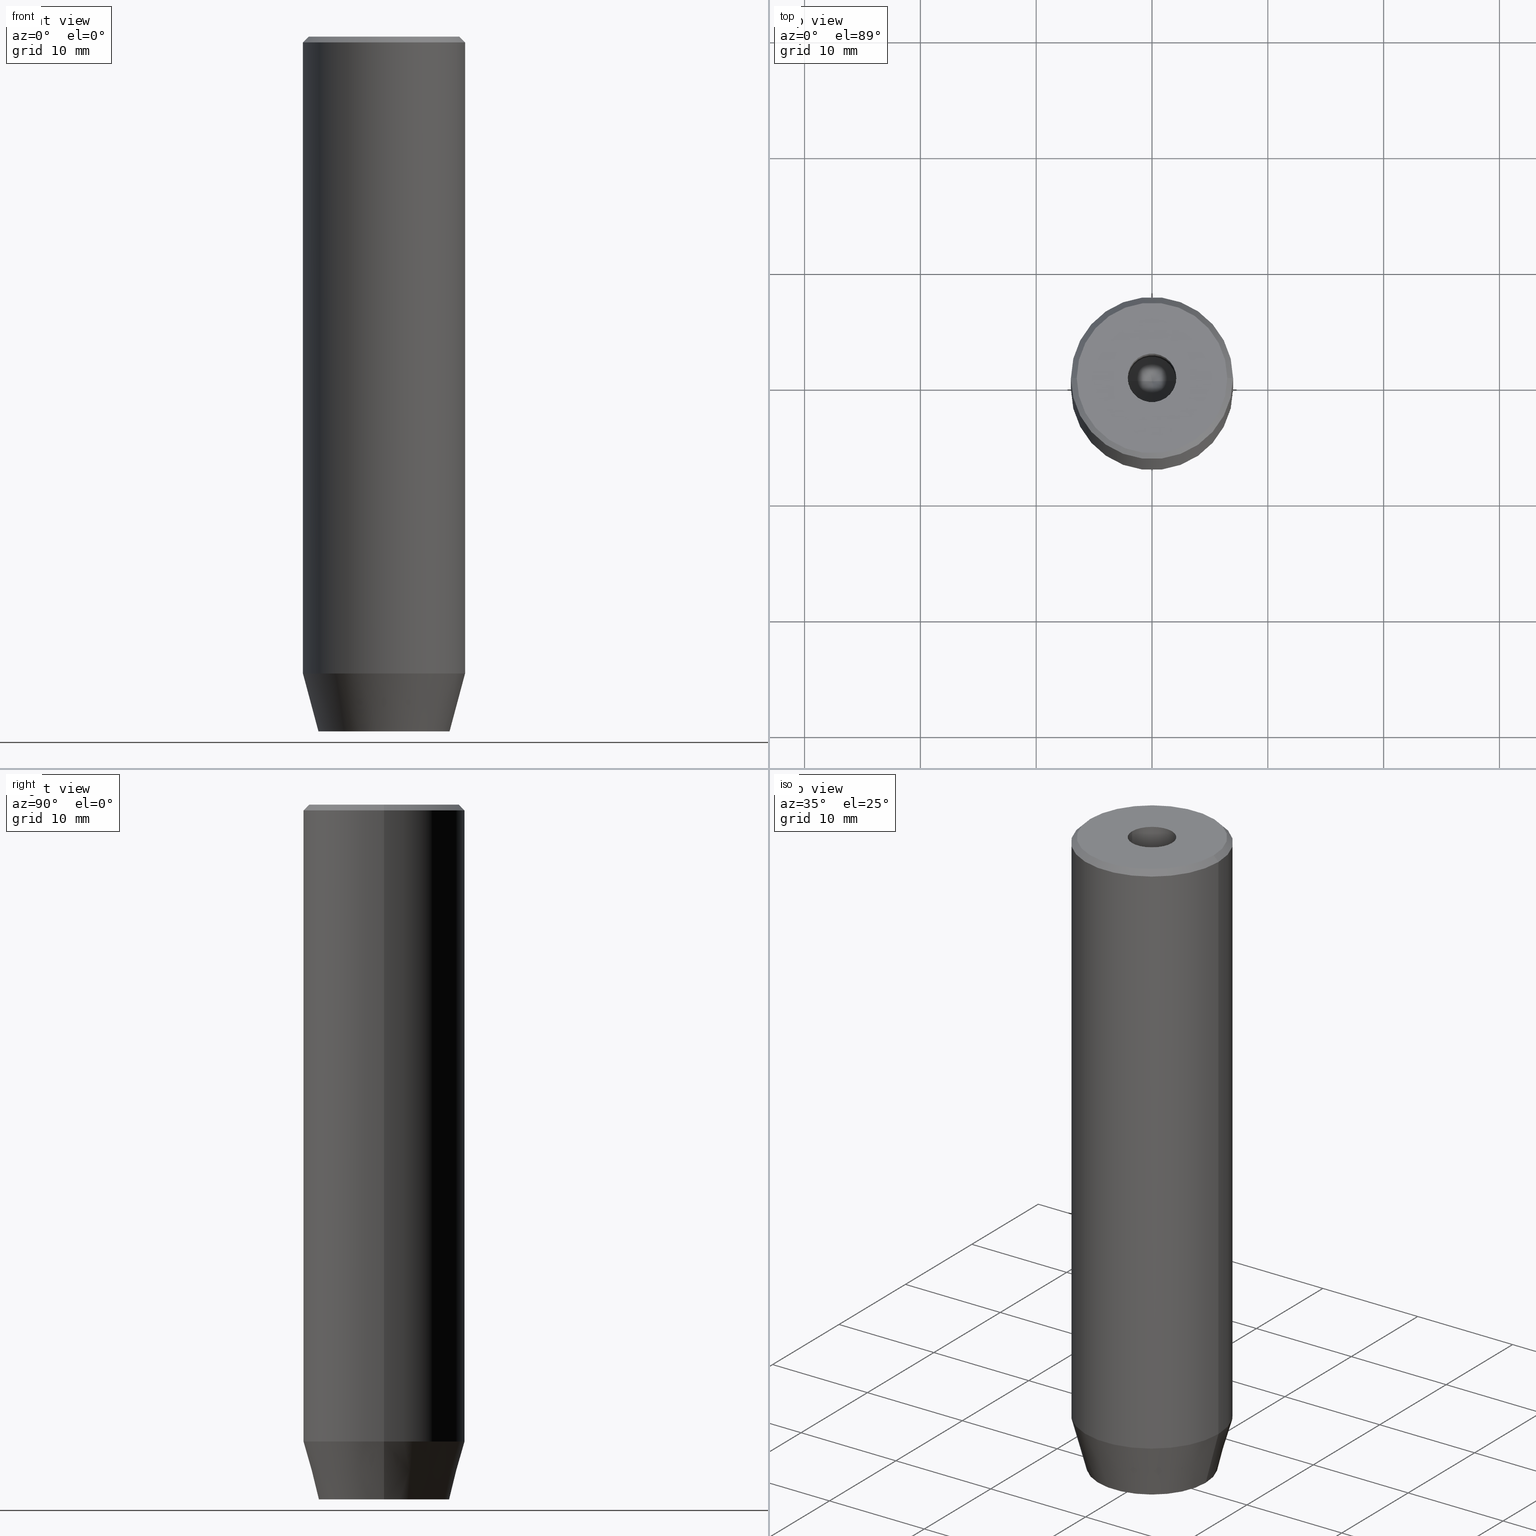
[diagram: canonical four-view strip — front | top / right | iso, engineering-drawing reading convention]
A machine part, canonical four-view strip (front | top / right | iso — engineering-drawing reading convention). The complete STEP part file that produces these views, byte-faithful:
ISO-10303-21;
HEADER;
FILE_DESCRIPTION (( 'STEP AP203' ),
    '1' );
FILE_NAME ('b612.STEP',
    '2024-01-02T21:54:17',
    ( '' ),
    ( '' ),
    'SwSTEP 2.0',
    'SolidWorks 2019',
    '' );
FILE_SCHEMA (( 'CONFIG_CONTROL_DESIGN' ));
ENDSEC;

DATA;
#1 = ORIENTED_EDGE ( 'NONE', *, *, #364, .F. ) ;
#2 = EDGE_CURVE ( 'NONE', #94, #56, #45, .T. ) ;
#3 = ORIENTED_EDGE ( 'NONE', *, *, #448, .F. ) ;
#4 = PRODUCT_RELATED_PRODUCT_CATEGORY ( 'detail', '', ( #91 ) ) ;
#5 = CALENDAR_DATE ( 2024, 2, 1 ) ;
#6 = EDGE_LOOP ( 'NONE', ( #409, #584, #286, #446 ) ) ;
#7 = DIRECTION ( 'NONE',  ( -0.000000000000000000, -0.000000000000000000, -1.000000000000000000 ) ) ;
#8 =( GEOMETRIC_REPRESENTATION_CONTEXT ( 3 ) GLOBAL_UNCERTAINTY_ASSIGNED_CONTEXT ( ( #567 ) ) GLOBAL_UNIT_ASSIGNED_CONTEXT ( ( #582, #178, #495 ) ) REPRESENTATION_CONTEXT ( 'NONE', 'WORKASPACE' ) );
#9 = EDGE_LOOP ( 'NONE', ( #302, #452, #139, #46 ) ) ;
#10 = LINE ( 'NONE', #464, #111 ) ;
#11 = PERSON_AND_ORGANIZATION ( #260, #223 ) ;
#12 = VERTEX_POINT ( 'NONE', #552 ) ;
#13 = EDGE_CURVE ( 'NONE', #56, #94, #377, .T. ) ;
#14 = LINE ( 'NONE', #330, #246 ) ;
#15 = DIRECTION ( 'NONE',  ( 1.000000000000000000, 0.000000000000000000, 0.000000000000000000 ) ) ;
#16 = CARTESIAN_POINT ( 'NONE',  ( -1.250000000000000444, 2.165063509461097269, -60.00000000000000000 ) ) ;
#17 = CALENDAR_DATE ( 2024, 2, 1 ) ;
#18 = ORIENTED_EDGE ( 'NONE', *, *, #462, .F. ) ;
#19 = LINE ( 'NONE', #371, #494 ) ;
#20 = ADVANCED_BREP_SHAPE_REPRESENTATION ( 'b612', ( #49, #239 ), #8 ) ;
#21 = EDGE_CURVE ( 'NONE', #440, #117, #335, .T. ) ;
#22 = DATE_TIME_ROLE ( 'classification_date' ) ;
#23 = CARTESIAN_POINT ( 'NONE',  ( 2.099999999999996980, 0.000000000000000000, -15.00000000000000000 ) ) ;
#24 = DIRECTION ( 'NONE',  ( -0.000000000000000000, -0.000000000000000000, -1.000000000000000000 ) ) ;
#25 = PERSON_AND_ORGANIZATION ( #260, #223 ) ;
#26 = FACE_OUTER_BOUND ( 'NONE', #186, .T. ) ;
#27 = DIRECTION ( 'NONE',  ( -0.000000000000000000, -0.000000000000000000, 1.000000000000000000 ) ) ;
#28 = CARTESIAN_POINT ( 'NONE',  ( 2.099999999999996980, 0.000000000000000000, -15.00000000000000000 ) ) ;
#29 = APPROVAL_PERSON_ORGANIZATION ( #25, #303, #163 ) ;
#30 = CARTESIAN_POINT ( 'NONE',  ( 1.250000000000000222, 2.165063509461096825, -57.20000000000000284 ) ) ;
#31 = CARTESIAN_POINT ( 'NONE',  ( 0.000000000000000000, 0.000000000000000000, -15.00000000000000000 ) ) ;
#32 = FACE_OUTER_BOUND ( 'NONE', #412, .T. ) ;
#33 = ORIENTED_EDGE ( 'NONE', *, *, #2, .F. ) ;
#34 = EDGE_CURVE ( 'NONE', #224, #252, #197, .T. ) ;
#35 = CARTESIAN_POINT ( 'NONE',  ( 2.099999999999997868, 0.000000000000000000, 0.000000000000000000 ) ) ;
#36 = DIRECTION ( 'NONE',  ( -1.000000000000000000, 0.000000000000000000, 0.000000000000000000 ) ) ;
#37 = VERTEX_POINT ( 'NONE', #556 ) ;
#38 = AXIS2_PLACEMENT_3D ( 'NONE', #395, #474, #210 ) ;
#39 = DIRECTION ( 'NONE',  ( 1.000000000000000000, 0.000000000000000000, 0.000000000000000000 ) ) ;
#40 = CARTESIAN_POINT ( 'NONE',  ( 0.000000000000000000, 0.000000000000000000, 0.000000000000000000 ) ) ;
#41 = CONICAL_SURFACE ( 'NONE', #459, 2.099999999999996980, 1.029744258676652535 ) ;
#42 = EDGE_CURVE ( 'NONE', #440, #12, #72, .T. ) ;
#43 = ORIENTED_EDGE ( 'NONE', *, *, #297, .T. ) ;
#44 = VERTEX_POINT ( 'NONE', #157 ) ;
#45 = CIRCLE ( 'NONE', #467, 7.000000000000000000 ) ;
#46 = ORIENTED_EDGE ( 'NONE', *, *, #74, .F. ) ;
#47 = ADVANCED_FACE ( 'NONE', ( #465 ), #61, .F. ) ;
#48 = DIRECTION ( 'NONE',  ( 1.000000000000000000, 0.000000000000000000, 0.000000000000000000 ) ) ;
#49 = MANIFOLD_SOLID_BREP ( 'Vrt�k z�vitn�ku pro M5 z�vit1', #456 ) ;
#50 = VERTEX_POINT ( 'NONE', #69 ) ;
#51 = ORIENTED_EDGE ( 'NONE', *, *, #318, .F. ) ;
#52 = VECTOR ( 'NONE', #283, 1000.000000000000000 ) ;
#53 = ORIENTED_EDGE ( 'NONE', *, *, #433, .F. ) ;
#54 = LINE ( 'NONE', #110, #387 ) ;
#55 = EDGE_CURVE ( 'NONE', #191, #88, #391, .T. ) ;
#56 = VERTEX_POINT ( 'NONE', #438 ) ;
#57 = PLANE ( 'NONE',  #257 ) ;
#58 = CARTESIAN_POINT ( 'NONE',  ( 2.500000000000000000, 0.000000000000000000, -57.20000000000000284 ) ) ;
#59 = FACE_OUTER_BOUND ( 'NONE', #6, .T. ) ;
#60 = AXIS2_PLACEMENT_3D ( 'NONE', #113, #470, #374 ) ;
#61 = PLANE ( 'NONE',  #123 ) ;
#62 = DIRECTION ( 'NONE',  ( -1.000000000000000000, 0.000000000000000000, 0.000000000000000000 ) ) ;
#63 = ADVANCED_FACE ( 'NONE', ( #216 ), #313, .T. ) ;
#64 = AXIS2_PLACEMENT_3D ( 'NONE', #184, #274, #488 ) ;
#65 = ORIENTED_EDGE ( 'NONE', *, *, #453, .F. ) ;
#66 = DIRECTION ( 'NONE',  ( 1.000000000000000000, 0.000000000000000000, 0.000000000000000000 ) ) ;
#67 = LINE ( 'NONE', #165, #230 ) ;
#68 = CARTESIAN_POINT ( 'NONE',  ( 0.000000000000000000, 0.000000000000000000, -60.00000000000000000 ) ) ;
#69 = CARTESIAN_POINT ( 'NONE',  ( -1.084202172485504434E-16, 2.886751345948129543, -57.20000000000000284 ) ) ;
#70 = AXIS2_PLACEMENT_3D ( 'NONE', #310, #308, #478 ) ;
#71 = FACE_OUTER_BOUND ( 'NONE', #243, .T. ) ;
#72 = CIRCLE ( 'NONE', #586, 6.499999999999999112 ) ;
#73 = ORIENTED_EDGE ( 'NONE', *, *, #453, .T. ) ;
#74 = EDGE_CURVE ( 'NONE', #88, #37, #566, .T. ) ;
#75 = LINE ( 'NONE', #528, #442 ) ;
#76 = DESIGN_CONTEXT ( 'detailed design', #208, 'design' ) ;
#77 = CARTESIAN_POINT ( 'NONE',  ( 0.000000000000000000, 0.000000000000000000, 0.000000000000000000 ) ) ;
#78 = ORIENTED_EDGE ( 'NONE', *, *, #401, .F. ) ;
#79 = DIRECTION ( 'NONE',  ( 1.000000000000000000, 0.000000000000000000, 0.000000000000000000 ) ) ;
#80 = DIRECTION ( 'NONE',  ( 1.000000000000000000, 0.000000000000000000, 0.000000000000000000 ) ) ;
#81 = EDGE_LOOP ( 'NONE', ( #272, #307, #65, #428 ) ) ;
#82 = CARTESIAN_POINT ( 'NONE',  ( 0.000000000000000000, -2.886751345948128211, -57.20000000000000284 ) ) ;
#83 = CONICAL_SURFACE ( 'NONE', #513, 7.000000000000000000, 0.2617993877991499074 ) ;
#84 = ADVANCED_FACE ( 'NONE', ( #430, #170 ), #269, .T. ) ;
#85 = FACE_OUTER_BOUND ( 'NONE', #96, .T. ) ;
#86 = ORIENTED_EDGE ( 'NONE', *, *, #152, .T. ) ;
#87 = CIRCLE ( 'NONE', #361, 2.099999999999996980 ) ;
#88 = VERTEX_POINT ( 'NONE', #28 ) ;
#89 = ADVANCED_FACE ( 'NONE', ( #26 ), #413, .F. ) ;
#90 = EDGE_LOOP ( 'NONE', ( #226, #546 ) ) ;
#91 = PRODUCT ( 'b612', 'b612', '', ( #181 ) ) ;
#92 = ORIENTED_EDGE ( 'NONE', *, *, #13, .T. ) ;
#93 = CC_DESIGN_APPROVAL ( #303, ( #298 ) ) ;
#94 = VERTEX_POINT ( 'NONE', #398 ) ;
#95 = APPROVAL_ROLE ( '' ) ;
#96 = EDGE_LOOP ( 'NONE', ( #51, #449, #503, #587 ) ) ;
#97 = CARTESIAN_POINT ( 'NONE',  ( -2.099999999999996980, 2.571758278209438013E-16, -15.00000000000000000 ) ) ;
#98 = EDGE_CURVE ( 'NONE', #497, #542, #255, .T. ) ;
#99 = VECTOR ( 'NONE', #176, 1000.000000000000000 ) ;
#100 = VECTOR ( 'NONE', #198, 1000.000000000000000 ) ;
#101 = APPROVAL_ROLE ( '' ) ;
#102 = ORIENTED_EDGE ( 'NONE', *, *, #401, .T. ) ;
#103 = DIRECTION ( 'NONE',  ( -0.000000000000000000, -0.000000000000000000, 1.000000000000000000 ) ) ;
#104 = LOCAL_TIME ( 22, 54, 17.00000000000000000, #565 ) ;
#105 = PERSON_AND_ORGANIZATION ( #260, #223 ) ;
#106 = DIRECTION ( 'NONE',  ( 1.000000000000000000, 0.000000000000000000, 0.000000000000000000 ) ) ;
#107 = LINE ( 'NONE', #291, #52 ) ;
#108 = EDGE_CURVE ( 'NONE', #367, #88, #196, .T. ) ;
#109 = DIRECTION ( 'NONE',  ( -0.000000000000000000, -0.000000000000000000, 1.000000000000000000 ) ) ;
#110 = CARTESIAN_POINT ( 'NONE',  ( -2.500000000000000444, -1.443375672974064328, -57.20000000000000284 ) ) ;
#111 = VECTOR ( 'NONE', #379, 1000.000000000000114 ) ;
#112 = DIRECTION ( 'NONE',  ( 0.8660254037844387076, -0.4999999999999998890, 0.000000000000000000 ) ) ;
#113 = CARTESIAN_POINT ( 'NONE',  ( 2.500000000000000000, 0.000000000000000000, -57.20000000000000284 ) ) ;
#114 = AXIS2_PLACEMENT_3D ( 'NONE', #77, #27, #437 ) ;
#115 = DIRECTION ( 'NONE',  ( -0.000000000000000000, -0.000000000000000000, -1.000000000000000000 ) ) ;
#116 = DIRECTION ( 'NONE',  ( 1.000000000000000000, 0.000000000000000000, 0.000000000000000000 ) ) ;
#117 = VERTEX_POINT ( 'NONE', #348 ) ;
#118 = PERSON_AND_ORGANIZATION ( #260, #223 ) ;
#119 = DIRECTION ( 'NONE',  ( 0.000000000000000000, 0.000000000000000000, -1.000000000000000000 ) ) ;
#120 = DIRECTION ( 'NONE',  ( 1.000000000000000000, 0.000000000000000000, 0.000000000000000000 ) ) ;
#121 = EDGE_CURVE ( 'NONE', #496, #548, #355, .T. ) ;
#122 = PLANE ( 'NONE',  #70 ) ;
#123 = AXIS2_PLACEMENT_3D ( 'NONE', #340, #511, #112 ) ;
#124 = CYLINDRICAL_SURFACE ( 'NONE', #545, 7.000000000000000000 ) ;
#125 = PERSON_AND_ORGANIZATION ( #260, #223 ) ;
#126 = DIRECTION ( 'NONE',  ( -0.000000000000000000, -0.000000000000000000, 1.000000000000000000 ) ) ;
#127 = CARTESIAN_POINT ( 'NONE',  ( 0.000000000000000000, -2.886751345948128211, -60.00000000000000000 ) ) ;
#128 = CARTESIAN_POINT ( 'NONE',  ( 0.000000000000000000, 0.000000000000000000, -1.990051048614449116E-16 ) ) ;
#129 = ADVANCED_FACE ( 'NONE', ( #353 ), #266, .F. ) ;
#130 = CARTESIAN_POINT ( 'NONE',  ( 0.000000000000000000, 0.000000000000000000, 0.000000000000000000 ) ) ;
#131 = DIRECTION ( 'NONE',  ( 0.8660254037844385966, 0.4999999999999999445, 0.000000000000000000 ) ) ;
#132 = ORIENTED_EDGE ( 'NONE', *, *, #441, .T. ) ;
#133 = CC_DESIGN_PERSON_AND_ORGANIZATION_ASSIGNMENT ( #125, #522, ( #298 ) ) ;
#134 = VECTOR ( 'NONE', #344, 1000.000000000000000 ) ;
#135 = ORIENTED_EDGE ( 'NONE', *, *, #98, .F. ) ;
#136 = CONICAL_SURFACE ( 'NONE', #370, 7.000000000000000000, 0.2617993877991499074 ) ;
#137 = ORIENTED_EDGE ( 'NONE', *, *, #187, .F. ) ;
#138 = EDGE_CURVE ( 'NONE', #37, #179, #140, .T. ) ;
#139 = ORIENTED_EDGE ( 'NONE', *, *, #167, .T. ) ;
#140 = CIRCLE ( 'NONE', #564, 2.099999999999998757 ) ;
#141 = VERTEX_POINT ( 'NONE', #385 ) ;
#142 = VECTOR ( 'NONE', #24, 1000.000000000000000 ) ;
#143 = ORIENTED_EDGE ( 'NONE', *, *, #526, .T. ) ;
#144 = EDGE_CURVE ( 'NONE', #141, #117, #406, .T. ) ;
#145 = DIRECTION ( 'NONE',  ( -0.8660254037844385966, -0.5000000000000001110, 0.000000000000000000 ) ) ;
#146 = EDGE_LOOP ( 'NONE', ( #535, #73, #530, #43, #425, #489 ) ) ;
#147 = DIRECTION ( 'NONE',  ( 1.000000000000000000, 0.000000000000000000, 0.000000000000000000 ) ) ;
#148 = VECTOR ( 'NONE', #349, 1000.000000000000000 ) ;
#149 = DATE_AND_TIME ( #5, #517 ) ;
#150 = ORIENTED_EDGE ( 'NONE', *, *, #254, .T. ) ;
#151 = CARTESIAN_POINT ( 'NONE',  ( -1.084202172485504434E-16, 2.886751345948129543, -57.20000000000000284 ) ) ;
#152 = EDGE_CURVE ( 'NONE', #252, #44, #67, .T. ) ;
#153 = PERSON_AND_ORGANIZATION_ROLE ( 'design_owner' ) ;
#154 = CARTESIAN_POINT ( 'NONE',  ( 0.000000000000000000, 0.000000000000000000, 0.000000000000000000 ) ) ;
#155 = DIRECTION ( 'NONE',  ( 0.000000000000000000, 0.000000000000000000, -1.000000000000000000 ) ) ;
#156 = COORDINATED_UNIVERSAL_TIME_OFFSET ( 1, 0, .AHEAD. ) ;
#157 = CARTESIAN_POINT ( 'NONE',  ( 2.500000000000000000, -1.443375672974064106, -60.00000000000000000 ) ) ;
#158 = PLANE ( 'NONE',  #60 ) ;
#159 = VECTOR ( 'NONE', #305, 1000.000000000000000 ) ;
#160 = CALENDAR_DATE ( 2024, 2, 1 ) ;
#161 = CARTESIAN_POINT ( 'NONE',  ( 0.000000000000000000, 0.000000000000000000, -0.5000000000000117684 ) ) ;
#162 = CARTESIAN_POINT ( 'NONE',  ( -2.500000000000000444, 1.443375672974064772, -57.20000000000000284 ) ) ;
#163 = APPROVAL_ROLE ( '' ) ;
#164 = APPROVAL_PERSON_ORGANIZATION ( #247, #380, #101 ) ;
#165 = CARTESIAN_POINT ( 'NONE',  ( 2.500000000000000000, -1.443375672974064106, -57.20000000000000284 ) ) ;
#166 = CARTESIAN_POINT ( 'NONE',  ( 2.500000000000000000, 1.443375672974064328, -57.20000000000000284 ) ) ;
#167 = EDGE_CURVE ( 'NONE', #179, #37, #576, .T. ) ;
#168 = DIRECTION ( 'NONE',  ( 0.000000000000000000, 1.000000000000000000, 0.000000000000000000 ) ) ;
#169 = CARTESIAN_POINT ( 'NONE',  ( -2.099999999999996980, 2.571758278209438013E-16, -15.00000000000000000 ) ) ;
#170 = FACE_OUTER_BOUND ( 'NONE', #537, .T. ) ;
#171 = AXIS2_PLACEMENT_3D ( 'NONE', #557, #155, #62 ) ;
#172 = DIRECTION ( 'NONE',  ( -0.000000000000000000, -0.000000000000000000, 1.000000000000000000 ) ) ;
#173 = VERTEX_POINT ( 'NONE', #258 ) ;
#174 = CC_DESIGN_DATE_AND_TIME_ASSIGNMENT ( #149, #188, ( #215 ) ) ;
#175 = DIRECTION ( 'NONE',  ( -0.000000000000000000, -0.000000000000000000, 1.000000000000000000 ) ) ;
#176 = DIRECTION ( 'NONE',  ( -0.000000000000000000, -0.000000000000000000, -1.000000000000000000 ) ) ;
#177 = PLANE ( 'NONE',  #235 ) ;
#178 =( NAMED_UNIT ( * ) PLANE_ANGLE_UNIT ( ) SI_UNIT ( $, .RADIAN. ) );
#179 = VERTEX_POINT ( 'NONE', #434 ) ;
#180 = VECTOR ( 'NONE', #469, 1000.000000000000000 ) ;
#181 = MECHANICAL_CONTEXT ( 'NONE', #312, 'mechanical' ) ;
#182 = ORIENTED_EDGE ( 'NONE', *, *, #433, .T. ) ;
#183 = ADVANCED_FACE ( 'NONE', ( #570 ), #122, .F. ) ;
#184 = CARTESIAN_POINT ( 'NONE',  ( 0.000000000000000000, 0.000000000000000000, -0.5000000000000117684 ) ) ;
#185 = ORIENTED_EDGE ( 'NONE', *, *, #441, .F. ) ;
#186 = EDGE_LOOP ( 'NONE', ( #323, #331, #275 ) ) ;
#187 = EDGE_CURVE ( 'NONE', #193, #44, #75, .T. ) ;
#188 = DATE_TIME_ROLE ( 'creation_date' ) ;
#189 = ORIENTED_EDGE ( 'NONE', *, *, #373, .T. ) ;
#190 = DIRECTION ( 'NONE',  ( -0.000000000000000000, -0.000000000000000000, 1.000000000000000000 ) ) ;
#191 = VERTEX_POINT ( 'NONE', #573 ) ;
#192 = DIRECTION ( 'NONE',  ( 0.2588190451025211836, 0.000000000000000000, 0.9659258262890680902 ) ) ;
#193 = VERTEX_POINT ( 'NONE', #222 ) ;
#194 = CARTESIAN_POINT ( 'NONE',  ( -6.499999999999999112, 0.000000000000000000, 0.000000000000000000 ) ) ;
#195 = ADVANCED_FACE ( 'NONE', ( #85 ), #443, .F. ) ;
#196 = CIRCLE ( 'NONE', #423, 2.099999999999996980 ) ;
#197 = LINE ( 'NONE', #58, #397 ) ;
#198 = DIRECTION ( 'NONE',  ( 0.8660254037844385966, 0.5000000000000001110, 0.000000000000000000 ) ) ;
#199 = ORIENTED_EDGE ( 'NONE', *, *, #543, .T. ) ;
#200 = DIRECTION ( 'NONE',  ( 0.000000000000000000, -0.000000000000000000, 1.000000000000000000 ) ) ;
#201 = APPROVAL_STATUS ( 'not_yet_approved' ) ;
#202 = DIRECTION ( 'NONE',  ( 1.000000000000000000, 0.000000000000000000, 0.000000000000000000 ) ) ;
#203 = CARTESIAN_POINT ( 'NONE',  ( -2.500000000000000444, 0.000000000000000000, -60.00000000000000000 ) ) ;
#204 = VECTOR ( 'NONE', #103, 1000.000000000000000 ) ;
#205 = ADVANCED_FACE ( 'NONE', ( #402 ), #177, .F. ) ;
#206 = DIRECTION ( 'NONE',  ( 1.000000000000000000, 0.000000000000000000, 0.000000000000000000 ) ) ;
#207 = CARTESIAN_POINT ( 'NONE',  ( -2.500000000000000444, -1.443375672974064328, -60.00000000000000000 ) ) ;
#208 = APPLICATION_CONTEXT ( 'configuration controlled 3d designs of mechanical parts and assemblies' ) ;
#209 = CONICAL_SURFACE ( 'NONE', #490, 6.499999999999999112, 0.7853981633974378429 ) ;
#210 = DIRECTION ( 'NONE',  ( 1.000000000000000000, 0.000000000000000000, 0.000000000000000000 ) ) ;
#211 = CARTESIAN_POINT ( 'NONE',  ( 6.499999999999999112, 8.266365894244633347E-16, 0.000000000000000000 ) ) ;
#212 = DIRECTION ( 'NONE',  ( -0.000000000000000000, -0.000000000000000000, -1.000000000000000000 ) ) ;
#213 = DIRECTION ( 'NONE',  ( -0.000000000000000000, -0.000000000000000000, 1.000000000000000000 ) ) ;
#214 = ORIENTED_EDGE ( 'NONE', *, *, #498, .T. ) ;
#215 = PRODUCT_DEFINITION ( 'NEZN�M�', '', #417, #76 ) ;
#216 = FACE_OUTER_BOUND ( 'NONE', #146, .T. ) ;
#217 = PRODUCT_DEFINITION_SHAPE ( 'NONE', 'NONE',  #215 ) ;
#218 = AXIS2_PLACEMENT_3D ( 'NONE', #416, #460, #106 ) ;
#219 = LINE ( 'NONE', #431, #585 ) ;
#220 = ORIENTED_EDGE ( 'NONE', *, *, #263, .F. ) ;
#221 = CC_DESIGN_PERSON_AND_ORGANIZATION_ASSIGNMENT ( #118, #468, ( #417 ) ) ;
#222 = CARTESIAN_POINT ( 'NONE',  ( 2.500000000000000000, 1.443375672974064328, -60.00000000000000000 ) ) ;
#223 = ORGANIZATION ( 'NEUR�EN�', 'NEUR�EN�', '' ) ;
#224 = VERTEX_POINT ( 'NONE', #315 ) ;
#225 = FACE_OUTER_BOUND ( 'NONE', #81, .T. ) ;
#226 = ORIENTED_EDGE ( 'NONE', *, *, #138, .F. ) ;
#227 = ADVANCED_FACE ( 'NONE', ( #59 ), #368, .T. ) ;
#228 = APPLICATION_PROTOCOL_DEFINITION ( 'international standard', 'config_control_design', 1994, #312 ) ;
#229 = ORIENTED_EDGE ( 'NONE', *, *, #339, .F. ) ;
#230 = VECTOR ( 'NONE', #212, 1000.000000000000000 ) ;
#231 = ORIENTED_EDGE ( 'NONE', *, *, #393, .F. ) ;
#232 = ORIENTED_EDGE ( 'NONE', *, *, #297, .F. ) ;
#233 = EDGE_CURVE ( 'NONE', #496, #497, #547, .T. ) ;
#234 = EDGE_LOOP ( 'NONE', ( #507, #404, #232, #86 ) ) ;
#235 = AXIS2_PLACEMENT_3D ( 'NONE', #357, #534, #131 ) ;
#236 = APPROVAL ( #499, 'NEUR�EN�' ) ;
#237 = DIRECTION ( 'NONE',  ( -0.000000000000000000, -0.000000000000000000, 1.000000000000000000 ) ) ;
#238 = DIRECTION ( 'NONE',  ( -0.000000000000000000, -0.000000000000000000, -1.000000000000000000 ) ) ;
#239 = AXIS2_PLACEMENT_3D ( 'NONE', #40, #362, #403 ) ;
#240 = AXIS2_PLACEMENT_3D ( 'NONE', #68, #309, #396 ) ;
#241 = ORIENTED_EDGE ( 'NONE', *, *, #21, .T. ) ;
#242 = DIRECTION ( 'NONE',  ( -0.5000000000000001110, 0.8660254037844385966, 0.000000000000000000 ) ) ;
#243 = EDGE_LOOP ( 'NONE', ( #277, #248, #102, #369 ) ) ;
#244 = ADVANCED_FACE ( 'NONE', ( #422 ), #83, .T. ) ;
#245 = LINE ( 'NONE', #194, #316 ) ;
#246 = VECTOR ( 'NONE', #192, 1000.000000000000114 ) ;
#247 = PERSON_AND_ORGANIZATION ( #260, #223 ) ;
#248 = ORIENTED_EDGE ( 'NONE', *, *, #2, .T. ) ;
#249 = FACE_OUTER_BOUND ( 'NONE', #265, .T. ) ;
#250 = CIRCLE ( 'NONE', #580, 5.660254037844384634 ) ;
#251 = DATE_AND_TIME ( #352, #568 ) ;
#252 = VERTEX_POINT ( 'NONE', #341 ) ;
#253 = DIRECTION ( 'NONE',  ( -0.000000000000000000, -0.000000000000000000, 1.000000000000000000 ) ) ;
#254 = EDGE_CURVE ( 'NONE', #173, #382, #512, .T. ) ;
#255 = LINE ( 'NONE', #481, #550 ) ;
#256 = DIRECTION ( 'NONE',  ( -0.8571673007021113344, 1.049727191138617463E-16, 0.5150380749100558209 ) ) ;
#257 = AXIS2_PLACEMENT_3D ( 'NONE', #414, #242, #145 ) ;
#258 = CARTESIAN_POINT ( 'NONE',  ( -2.500000000000000444, 1.443375672974064772, -60.00000000000000000 ) ) ;
#259 = LINE ( 'NONE', #203, #504 ) ;
#260 = PERSON ( 'NEUR�EN�', 'NEUR�EN�', 'NEUR�EN�', ('NEUR�EN�'), ('NEUR�EN�'), ('NEUR�EN�') ) ;
#261 = ORIENTED_EDGE ( 'NONE', *, *, #42, .F. ) ;
#262 = DIRECTION ( 'NONE',  ( 0.000000000000000000, -1.000000000000000000, 0.000000000000000000 ) ) ;
#263 = EDGE_CURVE ( 'NONE', #12, #141, #245, .T. ) ;
#264 = CARTESIAN_POINT ( 'NONE',  ( -1.250000000000000444, 2.165063509461097269, -57.20000000000000284 ) ) ;
#265 = EDGE_LOOP ( 'NONE', ( #544, #281 ) ) ;
#266 = CYLINDRICAL_SURFACE ( 'NONE', #486, 2.099999999999997868 ) ;
#267 = DIRECTION ( 'NONE',  ( 0.000000000000000000, 0.000000000000000000, -1.000000000000000000 ) ) ;
#268 = EDGE_LOOP ( 'NONE', ( #261, #241, #359, #220 ) ) ;
#269 = PLANE ( 'NONE',  #525 ) ;
#270 = AXIS2_PLACEMENT_3D ( 'NONE', #549, #200, #66 ) ;
#271 = DIRECTION ( 'NONE',  ( 0.5000000000000001110, 0.8660254037844385966, -0.000000000000000000 ) ) ;
#272 = ORIENTED_EDGE ( 'NONE', *, *, #415, .T. ) ;
#273 = EDGE_CURVE ( 'NONE', #365, #94, #10, .T. ) ;
#274 = DIRECTION ( 'NONE',  ( 0.000000000000000000, 0.000000000000000000, -1.000000000000000000 ) ) ;
#275 = ORIENTED_EDGE ( 'NONE', *, *, #108, .T. ) ;
#276 = CARTESIAN_POINT ( 'NONE',  ( 1.250000000000000222, 2.165063509461096825, -57.20000000000000284 ) ) ;
#277 = ORIENTED_EDGE ( 'NONE', *, *, #373, .F. ) ;
#278 = EDGE_LOOP ( 'NONE', ( #375, #378, #541, #143 ) ) ;
#279 = CIRCLE ( 'NONE', #531, 6.499999999999999112 ) ;
#280 = CC_DESIGN_PERSON_AND_ORGANIZATION_ASSIGNMENT ( #381, #285, ( #215 ) ) ;
#281 = ORIENTED_EDGE ( 'NONE', *, *, #42, .T. ) ;
#282 = VERTEX_POINT ( 'NONE', #332 ) ;
#283 = DIRECTION ( 'NONE',  ( -0.000000000000000000, -0.000000000000000000, 1.000000000000000000 ) ) ;
#284 = VECTOR ( 'NONE', #256, 1000.000000000000000 ) ;
#285 = PERSON_AND_ORGANIZATION_ROLE ( 'creator' ) ;
#286 = ORIENTED_EDGE ( 'NONE', *, *, #263, .T. ) ;
#287 = FACE_OUTER_BOUND ( 'NONE', #278, .T. ) ;
#288 = CC_DESIGN_APPROVAL ( #380, ( #215 ) ) ;
#289 = EDGE_CURVE ( 'NONE', #44, #548, #19, .T. ) ;
#290 = CARTESIAN_POINT ( 'NONE',  ( 0.000000000000000000, 0.000000000000000000, -55.00000000000000000 ) ) ;
#291 = CARTESIAN_POINT ( 'NONE',  ( -7.000000000000000000, 8.572527594031473190E-16, 0.000000000000000000 ) ) ;
#292 = DIRECTION ( 'NONE',  ( 1.000000000000000000, 0.000000000000000000, 0.000000000000000000 ) ) ;
#293 = LINE ( 'NONE', #383, #134 ) ;
#294 = AXIS2_PLACEMENT_3D ( 'NONE', #31, #126, #206 ) ;
#295 = CARTESIAN_POINT ( 'NONE',  ( 6.499999999999999112, 7.960204194457794491E-16, 0.000000000000000000 ) ) ;
#296 = DIRECTION ( 'NONE',  ( -0.8660254037844387076, -0.5000000000000001110, 0.000000000000000000 ) ) ;
#297 = EDGE_CURVE ( 'NONE', #252, #496, #338, .T. ) ;
#298 = SECURITY_CLASSIFICATION ( '', '', #427 ) ;
#299 = PERSON_AND_ORGANIZATION_ROLE ( 'creator' ) ;
#300 = DIRECTION ( 'NONE',  ( -0.000000000000000000, -0.000000000000000000, 1.000000000000000000 ) ) ;
#301 = CARTESIAN_POINT ( 'NONE',  ( 0.000000000000000000, -2.886751345948128211, -57.20000000000000284 ) ) ;
#302 = ORIENTED_EDGE ( 'NONE', *, *, #108, .F. ) ;
#303 = APPROVAL ( #201, 'NEUR�EN�' ) ;
#304 = SHAPE_DEFINITION_REPRESENTATION ( #217, #20 ) ;
#305 = DIRECTION ( 'NONE',  ( 0.8571673007021113344, 0.000000000000000000, 0.5150380749100558209 ) ) ;
#306 = CARTESIAN_POINT ( 'NONE',  ( -2.500000000000000444, 1.443375672974064772, -57.20000000000000284 ) ) ;
#307 = ORIENTED_EDGE ( 'NONE', *, *, #526, .F. ) ;
#308 = DIRECTION ( 'NONE',  ( -1.000000000000000000, 0.000000000000000000, 0.000000000000000000 ) ) ;
#309 = DIRECTION ( 'NONE',  ( -0.000000000000000000, -0.000000000000000000, 1.000000000000000000 ) ) ;
#310 = CARTESIAN_POINT ( 'NONE',  ( -2.500000000000000444, 0.000000000000000000, -57.20000000000000284 ) ) ;
#311 = FACE_OUTER_BOUND ( 'NONE', #268, .T. ) ;
#312 = APPLICATION_CONTEXT ( 'configuration controlled 3d designs of mechanical parts and assemblies' ) ;
#313 = PLANE ( 'NONE',  #405 ) ;
#314 = CARTESIAN_POINT ( 'NONE',  ( 0.000000000000000000, 0.000000000000000000, -15.00000000000000000 ) ) ;
#315 = CARTESIAN_POINT ( 'NONE',  ( 2.500000000000000000, 1.443375672974064328, -57.20000000000000284 ) ) ;
#316 = VECTOR ( 'NONE', #553, 1000.000000000000000 ) ;
#317 = EDGE_LOOP ( 'NONE', ( #360, #214, #363, #33 ) ) ;
#318 = EDGE_CURVE ( 'NONE', #367, #179, #559, .T. ) ;
#319 = PLANE ( 'NONE',  #555 ) ;
#320 = ORIENTED_EDGE ( 'NONE', *, *, #415, .F. ) ;
#321 = ORIENTED_EDGE ( 'NONE', *, *, #393, .T. ) ;
#322 = CC_DESIGN_PERSON_AND_ORGANIZATION_ASSIGNMENT ( #11, #153, ( #91 ) ) ;
#323 = ORIENTED_EDGE ( 'NONE', *, *, #55, .F. ) ;
#324 = VECTOR ( 'NONE', #115, 1000.000000000000000 ) ;
#325 = CARTESIAN_POINT ( 'NONE',  ( 0.000000000000000000, 0.000000000000000000, 0.000000000000000000 ) ) ;
#326 = ORIENTED_EDGE ( 'NONE', *, *, #289, .F. ) ;
#327 = CIRCLE ( 'NONE', #64, 7.000000000000000000 ) ;
#328 = DATE_AND_TIME ( #17, #539 ) ;
#329 = EDGE_LOOP ( 'NONE', ( #182, #185, #135, #321 ) ) ;
#330 = CARTESIAN_POINT ( 'NONE',  ( 7.000000000000000000, 0.000000000000000000, -55.00000000000000000 ) ) ;
#331 = ORIENTED_EDGE ( 'NONE', *, *, #424, .T. ) ;
#332 = CARTESIAN_POINT ( 'NONE',  ( 5.660254037844384634, 0.000000000000000000, -60.00000000000000000 ) ) ;
#333 = VECTOR ( 'NONE', #7, 1000.000000000000000 ) ;
#334 = ADVANCED_FACE ( 'NONE', ( #508 ), #57, .F. ) ;
#335 = LINE ( 'NONE', #295, #180 ) ;
#336 = CARTESIAN_POINT ( 'NONE',  ( -1.249999999999999556, -2.165063509461096825, -57.20000000000000284 ) ) ;
#337 = ORIENTED_EDGE ( 'NONE', *, *, #144, .T. ) ;
#338 = LINE ( 'NONE', #461, #476 ) ;
#339 = EDGE_CURVE ( 'NONE', #282, #56, #14, .T. ) ;
#340 = CARTESIAN_POINT ( 'NONE',  ( -1.249999999999999556, -2.165063509461096825, -57.20000000000000284 ) ) ;
#341 = CARTESIAN_POINT ( 'NONE',  ( 2.500000000000000000, -1.443375672974064106, -57.20000000000000284 ) ) ;
#342 = AXIS2_PLACEMENT_3D ( 'NONE', #161, #119, #343 ) ;
#343 = DIRECTION ( 'NONE',  ( 1.000000000000000000, 0.000000000000000000, 0.000000000000000000 ) ) ;
#344 = DIRECTION ( 'NONE',  ( -0.000000000000000000, -0.000000000000000000, 1.000000000000000000 ) ) ;
#345 = DIRECTION ( 'NONE',  ( 1.000000000000000000, 0.000000000000000000, 0.000000000000000000 ) ) ;
#346 = DIRECTION ( 'NONE',  ( 1.000000000000000000, 0.000000000000000000, 0.000000000000000000 ) ) ;
#347 = PERSON_AND_ORGANIZATION ( #260, #223 ) ;
#348 = CARTESIAN_POINT ( 'NONE',  ( 7.000000000000000000, 0.000000000000000000, -0.5000000000000117684 ) ) ;
#349 = DIRECTION ( 'NONE',  ( 0.8660254037844385966, -0.5000000000000001110, 0.000000000000000000 ) ) ;
#350 = ADVANCED_FACE ( 'NONE', ( #287 ), #158, .F. ) ;
#351 = VECTOR ( 'NONE', #418, 1000.000000000000114 ) ;
#352 = CALENDAR_DATE ( 2024, 2, 1 ) ;
#353 = FACE_OUTER_BOUND ( 'NONE', #9, .T. ) ;
#354 = DIRECTION ( 'NONE',  ( 1.000000000000000000, 0.000000000000000000, 0.000000000000000000 ) ) ;
#355 = LINE ( 'NONE', #82, #324 ) ;
#356 = LINE ( 'NONE', #166, #142 ) ;
#357 = CARTESIAN_POINT ( 'NONE',  ( 1.249999999999999778, -2.165063509461096380, -57.20000000000000284 ) ) ;
#358 = ADVANCED_FACE ( 'NONE', ( #376, #249 ), #510, .T. ) ;
#359 = ORIENTED_EDGE ( 'NONE', *, *, #144, .F. ) ;
#360 = ORIENTED_EDGE ( 'NONE', *, *, #273, .F. ) ;
#361 = AXIS2_PLACEMENT_3D ( 'NONE', #392, #529, #116 ) ;
#362 = DIRECTION ( 'NONE',  ( 0.000000000000000000, 0.000000000000000000, 1.000000000000000000 ) ) ;
#363 = ORIENTED_EDGE ( 'NONE', *, *, #339, .T. ) ;
#364 = EDGE_CURVE ( 'NONE', #50, #382, #501, .T. ) ;
#365 = VERTEX_POINT ( 'NONE', #420 ) ;
#366 = CC_DESIGN_PERSON_AND_ORGANIZATION_ASSIGNMENT ( #347, #299, ( #417 ) ) ;
#367 = VERTEX_POINT ( 'NONE', #97 ) ;
#368 = CONICAL_SURFACE ( 'NONE', #171, 6.499999999999999112, 0.7853981633974378429 ) ;
#369 = ORIENTED_EDGE ( 'NONE', *, *, #561, .T. ) ;
#370 = AXIS2_PLACEMENT_3D ( 'NONE', #521, #213, #80 ) ;
#371 = CARTESIAN_POINT ( 'NONE',  ( 1.249999999999999778, -2.165063509461096380, -60.00000000000000000 ) ) ;
#372 = ORIENTED_EDGE ( 'NONE', *, *, #233, .F. ) ;
#373 = EDGE_CURVE ( 'NONE', #94, #141, #107, .T. ) ;
#374 = DIRECTION ( 'NONE',  ( -0.000000000000000000, 0.000000000000000000, -1.000000000000000000 ) ) ;
#375 = ORIENTED_EDGE ( 'NONE', *, *, #187, .T. ) ;
#376 = FACE_BOUND ( 'NONE', #90, .T. ) ;
#377 = CIRCLE ( 'NONE', #218, 7.000000000000000000 ) ;
#378 = ORIENTED_EDGE ( 'NONE', *, *, #152, .F. ) ;
#379 = DIRECTION ( 'NONE',  ( -0.2588190451025211836, 3.169619151431770488E-17, 0.9659258262890680902 ) ) ;
#380 = APPROVAL ( #411, 'NEUR�EN�' ) ;
#381 = PERSON_AND_ORGANIZATION ( #260, #223 ) ;
#382 = VERTEX_POINT ( 'NONE', #457 ) ;
#383 = CARTESIAN_POINT ( 'NONE',  ( 7.000000000000000000, 0.000000000000000000, 0.000000000000000000 ) ) ;
#384 = COORDINATED_UNIVERSAL_TIME_OFFSET ( 1, 0, .AHEAD. ) ;
#385 = CARTESIAN_POINT ( 'NONE',  ( -7.000000000000000000, 8.572527594031473190E-16, -0.5000000000000117684 ) ) ;
#386 = LINE ( 'NONE', #169, #284 ) ;
#387 = VECTOR ( 'NONE', #238, 1000.000000000000000 ) ;
#388 = DIRECTION ( 'NONE',  ( -0.000000000000000000, -0.000000000000000000, 1.000000000000000000 ) ) ;
#389 = CYLINDRICAL_SURFACE ( 'NONE', #114, 7.000000000000000000 ) ;
#390 = LOCAL_TIME ( 22, 54, 17.00000000000000000, #384 ) ;
#391 = LINE ( 'NONE', #23, #159 ) ;
#392 = CARTESIAN_POINT ( 'NONE',  ( 0.000000000000000000, 0.000000000000000000, -15.00000000000000000 ) ) ;
#393 = EDGE_CURVE ( 'NONE', #497, #455, #54, .T. ) ;
#394 = DATE_AND_TIME ( #477, #390 ) ;
#395 = CARTESIAN_POINT ( 'NONE',  ( 0.000000000000000000, 0.000000000000000000, -1.990051048614449116E-16 ) ) ;
#396 = DIRECTION ( 'NONE',  ( 1.000000000000000000, 0.000000000000000000, 0.000000000000000000 ) ) ;
#397 = VECTOR ( 'NONE', #421, 1000.000000000000000 ) ;
#398 = CARTESIAN_POINT ( 'NONE',  ( -7.000000000000000000, 8.572527594031473190E-16, -55.00000000000000000 ) ) ;
#399 = DIRECTION ( 'NONE',  ( -0.8660254037844387076, 0.4999999999999998890, 0.000000000000000000 ) ) ;
#400 = CC_DESIGN_SECURITY_CLASSIFICATION ( #298, ( #417 ) ) ;
#401 = EDGE_CURVE ( 'NONE', #56, #117, #293, .T. ) ;
#402 = FACE_OUTER_BOUND ( 'NONE', #234, .T. ) ;
#403 = DIRECTION ( 'NONE',  ( 1.000000000000000000, 0.000000000000000000, 0.000000000000000000 ) ) ;
#404 = ORIENTED_EDGE ( 'NONE', *, *, #121, .F. ) ;
#405 = AXIS2_PLACEMENT_3D ( 'NONE', #523, #520, #484 ) ;
#406 = CIRCLE ( 'NONE', #342, 7.000000000000000000 ) ;
#407 = ORIENTED_EDGE ( 'NONE', *, *, #543, .F. ) ;
#408 = CC_DESIGN_APPROVAL ( #236, ( #417 ) ) ;
#409 = ORIENTED_EDGE ( 'NONE', *, *, #21, .F. ) ;
#410 = EDGE_LOOP ( 'NONE', ( #558, #53, #18, #326, #137, #320 ) ) ;
#411 = APPROVAL_STATUS ( 'not_yet_approved' ) ;
#412 = EDGE_LOOP ( 'NONE', ( #199, #451, #491, #229 ) ) ;
#413 = CONICAL_SURFACE ( 'NONE', #294, 2.099999999999996980, 1.029744258676652535 ) ;
#414 = CARTESIAN_POINT ( 'NONE',  ( -1.250000000000000444, 2.165063509461097269, -57.20000000000000284 ) ) ;
#415 = EDGE_CURVE ( 'NONE', #382, #193, #524, .T. ) ;
#416 = CARTESIAN_POINT ( 'NONE',  ( 0.000000000000000000, 0.000000000000000000, -55.00000000000000000 ) ) ;
#417 = PRODUCT_DEFINITION_FORMATION_WITH_SPECIFIED_SOURCE ( 'LIBOVOLN�', '', #91, .NOT_KNOWN. ) ;
#418 = DIRECTION ( 'NONE',  ( -0.8660254037844387076, 0.4999999999999998890, 0.000000000000000000 ) ) ;
#419 = ORIENTED_EDGE ( 'NONE', *, *, #462, .T. ) ;
#420 = CARTESIAN_POINT ( 'NONE',  ( -5.660254037844384634, 7.752169791919240742E-16, -60.00000000000000000 ) ) ;
#421 = DIRECTION ( 'NONE',  ( 0.000000000000000000, -1.000000000000000000, 0.000000000000000000 ) ) ;
#422 = FACE_OUTER_BOUND ( 'NONE', #317, .T. ) ;
#423 = AXIS2_PLACEMENT_3D ( 'NONE', #577, #300, #79 ) ;
#424 = EDGE_CURVE ( 'NONE', #191, #367, #386, .T. ) ;
#425 = ORIENTED_EDGE ( 'NONE', *, *, #233, .T. ) ;
#426 = DIRECTION ( 'NONE',  ( -0.8660254037844387076, -0.5000000000000001110, 0.000000000000000000 ) ) ;
#427 = SECURITY_CLASSIFICATION_LEVEL ( 'unclassified' ) ;
#428 = ORIENTED_EDGE ( 'NONE', *, *, #364, .T. ) ;
#429 = LINE ( 'NONE', #30, #148 ) ;
#430 = FACE_BOUND ( 'NONE', #410, .T. ) ;
#431 = CARTESIAN_POINT ( 'NONE',  ( -1.249999999999999556, -2.165063509461096825, -60.00000000000000000 ) ) ;
#432 = AXIS2_PLACEMENT_3D ( 'NONE', #581, #487, #39 ) ;
#433 = EDGE_CURVE ( 'NONE', #455, #173, #259, .T. ) ;
#434 = CARTESIAN_POINT ( 'NONE',  ( -2.099999999999998757, 2.571758278209439985E-16, -1.990051048614449116E-16 ) ) ;
#435 = LINE ( 'NONE', #264, #502 ) ;
#436 = CARTESIAN_POINT ( 'NONE',  ( 0.000000000000000000, 5.660254037844384634, -60.00000000000000000 ) ) ;
#437 = DIRECTION ( 'NONE',  ( 1.000000000000000000, 0.000000000000000000, 0.000000000000000000 ) ) ;
#438 = CARTESIAN_POINT ( 'NONE',  ( 7.000000000000000000, 0.000000000000000000, -55.00000000000000000 ) ) ;
#439 = CARTESIAN_POINT ( 'NONE',  ( 1.250000000000000222, 2.165063509461096825, -60.00000000000000000 ) ) ;
#440 = VERTEX_POINT ( 'NONE', #211 ) ;
#441 = EDGE_CURVE ( 'NONE', #542, #173, #578, .T. ) ;
#442 = VECTOR ( 'NONE', #262, 1000.000000000000000 ) ;
#443 = CYLINDRICAL_SURFACE ( 'NONE', #432, 2.099999999999997868 ) ;
#444 = ORIENTED_EDGE ( 'NONE', *, *, #55, .T. ) ;
#445 = DIRECTION ( 'NONE',  ( -0.8660254037844385966, 0.5000000000000001110, 0.000000000000000000 ) ) ;
#446 = ORIENTED_EDGE ( 'NONE', *, *, #561, .F. ) ;
#447 = VECTOR ( 'NONE', #388, 1000.000000000000000 ) ;
#448 = EDGE_CURVE ( 'NONE', #542, #50, #435, .T. ) ;
#449 = ORIENTED_EDGE ( 'NONE', *, *, #492, .F. ) ;
#450 = CIRCLE ( 'NONE', #240, 5.660254037844384634 ) ;
#451 = ORIENTED_EDGE ( 'NONE', *, *, #273, .T. ) ;
#452 = ORIENTED_EDGE ( 'NONE', *, *, #318, .T. ) ;
#453 = EDGE_CURVE ( 'NONE', #50, #224, #429, .T. ) ;
#454 = COORDINATED_UNIVERSAL_TIME_OFFSET ( 1, 0, .AHEAD. ) ;
#455 = VERTEX_POINT ( 'NONE', #207 ) ;
#456 = CLOSED_SHELL ( 'NONE', ( #129, #89, #554, #538, #473, #84, #358, #482, #244, #227, #334, #183, #47, #205, #350, #583, #63, #518, #195 ) ) ;
#457 = CARTESIAN_POINT ( 'NONE',  ( -2.168404344971008868E-16, 2.886751345948129099, -60.00000000000000000 ) ) ;
#458 = CC_DESIGN_DATE_AND_TIME_ASSIGNMENT ( #572, #22, ( #298 ) ) ;
#459 = AXIS2_PLACEMENT_3D ( 'NONE', #314, #253, #346 ) ;
#460 = DIRECTION ( 'NONE',  ( -0.000000000000000000, -0.000000000000000000, 1.000000000000000000 ) ) ;
#461 = CARTESIAN_POINT ( 'NONE',  ( 1.249999999999999778, -2.165063509461096380, -57.20000000000000284 ) ) ;
#462 = EDGE_CURVE ( 'NONE', #548, #455, #219, .T. ) ;
#463 = EDGE_LOOP ( 'NONE', ( #419, #231, #372, #509 ) ) ;
#464 = CARTESIAN_POINT ( 'NONE',  ( -7.000000000000000000, 8.572527594031473190E-16, -55.00000000000000000 ) ) ;
#465 = FACE_OUTER_BOUND ( 'NONE', #463, .T. ) ;
#466 = CARTESIAN_POINT ( 'NONE',  ( 0.000000000000000000, 0.000000000000000000, -55.00000000000000000 ) ) ;
#467 = AXIS2_PLACEMENT_3D ( 'NONE', #290, #237, #15 ) ;
#468 = PERSON_AND_ORGANIZATION_ROLE ( 'design_supplier' ) ;
#469 = DIRECTION ( 'NONE',  ( 0.7071067811865401342, 8.659560562354842879E-17, -0.7071067811865549002 ) ) ;
#470 = DIRECTION ( 'NONE',  ( 1.000000000000000000, 0.000000000000000000, -0.000000000000000000 ) ) ;
#471 = CARTESIAN_POINT ( 'NONE',  ( 0.000000000000000000, 0.000000000000000000, 0.000000000000000000 ) ) ;
#472 = FACE_OUTER_BOUND ( 'NONE', #575, .T. ) ;
#473 = ADVANCED_FACE ( 'NONE', ( #563 ), #389, .T. ) ;
#474 = DIRECTION ( 'NONE',  ( -0.000000000000000000, -0.000000000000000000, 1.000000000000000000 ) ) ;
#475 = DIRECTION ( 'NONE',  ( 0.8660254037844385966, 0.5000000000000001110, 0.000000000000000000 ) ) ;
#476 = VECTOR ( 'NONE', #426, 999.9999999999998863 ) ;
#477 = CALENDAR_DATE ( 2024, 2, 1 ) ;
#478 = DIRECTION ( 'NONE',  ( 0.000000000000000000, 0.000000000000000000, 1.000000000000000000 ) ) ;
#479 = EDGE_LOOP ( 'NONE', ( #92, #189, #337, #78 ) ) ;
#480 = APPROVAL_PERSON_ORGANIZATION ( #105, #236, #95 ) ;
#481 = CARTESIAN_POINT ( 'NONE',  ( -2.500000000000000444, 0.000000000000000000, -57.20000000000000284 ) ) ;
#482 = ADVANCED_FACE ( 'NONE', ( #71 ), #124, .T. ) ;
#483 = CARTESIAN_POINT ( 'NONE',  ( 0.000000000000000000, 0.000000000000000000, 0.000000000000000000 ) ) ;
#484 = DIRECTION ( 'NONE',  ( -1.000000000000000000, 0.000000000000000000, -0.000000000000000000 ) ) ;
#485 = CARTESIAN_POINT ( 'NONE',  ( -2.500000000000000444, -1.443375672974064328, -57.20000000000000284 ) ) ;
#486 = AXIS2_PLACEMENT_3D ( 'NONE', #471, #562, #345 ) ;
#487 = DIRECTION ( 'NONE',  ( -0.000000000000000000, -0.000000000000000000, 1.000000000000000000 ) ) ;
#488 = DIRECTION ( 'NONE',  ( 1.000000000000000000, 0.000000000000000000, 0.000000000000000000 ) ) ;
#489 = ORIENTED_EDGE ( 'NONE', *, *, #98, .T. ) ;
#490 = AXIS2_PLACEMENT_3D ( 'NONE', #483, #267, #36 ) ;
#491 = ORIENTED_EDGE ( 'NONE', *, *, #13, .F. ) ;
#492 = EDGE_CURVE ( 'NONE', #88, #367, #87, .T. ) ;
#493 = ORIENTED_EDGE ( 'NONE', *, *, #492, .T. ) ;
#494 = VECTOR ( 'NONE', #296, 999.9999999999998863 ) ;
#495 =( NAMED_UNIT ( * ) SI_UNIT ( $, .STERADIAN. ) SOLID_ANGLE_UNIT ( ) );
#496 = VERTEX_POINT ( 'NONE', #301 ) ;
#497 = VERTEX_POINT ( 'NONE', #485 ) ;
#498 = EDGE_CURVE ( 'NONE', #365, #282, #450, .T. ) ;
#499 = APPROVAL_STATUS ( 'not_yet_approved' ) ;
#500 = ORIENTED_EDGE ( 'NONE', *, *, #424, .F. ) ;
#501 = LINE ( 'NONE', #151, #333 ) ;
#502 = VECTOR ( 'NONE', #475, 1000.000000000000000 ) ;
#503 = ORIENTED_EDGE ( 'NONE', *, *, #74, .T. ) ;
#504 = VECTOR ( 'NONE', #569, 1000.000000000000000 ) ;
#505 = CARTESIAN_POINT ( 'NONE',  ( -2.099999999999997868, 2.571758278209438999E-16, 0.000000000000000000 ) ) ;
#506 = APPLICATION_PROTOCOL_DEFINITION ( 'international standard', 'config_control_design', 1994, #208 ) ;
#507 = ORIENTED_EDGE ( 'NONE', *, *, #289, .T. ) ;
#508 = FACE_OUTER_BOUND ( 'NONE', #516, .T. ) ;
#509 = ORIENTED_EDGE ( 'NONE', *, *, #121, .T. ) ;
#510 = PLANE ( 'NONE',  #270 ) ;
#511 = DIRECTION ( 'NONE',  ( -0.4999999999999998890, -0.8660254037844387076, 0.000000000000000000 ) ) ;
#512 = LINE ( 'NONE', #16, #100 ) ;
#513 = AXIS2_PLACEMENT_3D ( 'NONE', #466, #190, #147 ) ;
#514 = DIRECTION ( 'NONE',  ( -1.000000000000000000, 0.000000000000000000, -0.000000000000000000 ) ) ;
#515 = DIRECTION ( 'NONE',  ( 0.8660254037844385966, -0.5000000000000001110, 0.000000000000000000 ) ) ;
#516 = EDGE_LOOP ( 'NONE', ( #150, #1, #3, #132 ) ) ;
#517 = LOCAL_TIME ( 22, 54, 17.00000000000000000, #156 ) ;
#518 = ADVANCED_FACE ( 'NONE', ( #472 ), #41, .F. ) ;
#519 = APPROVAL_DATE_TIME ( #251, #236 ) ;
#520 = DIRECTION ( 'NONE',  ( 0.000000000000000000, 0.000000000000000000, -1.000000000000000000 ) ) ;
#521 = CARTESIAN_POINT ( 'NONE',  ( 0.000000000000000000, 0.000000000000000000, -55.00000000000000000 ) ) ;
#522 = PERSON_AND_ORGANIZATION_ROLE ( 'classification_officer' ) ;
#523 = CARTESIAN_POINT ( 'NONE',  ( 0.000000000000000000, 0.000000000000000000, -57.20000000000000284 ) ) ;
#524 = LINE ( 'NONE', #439, #536 ) ;
#525 = AXIS2_PLACEMENT_3D ( 'NONE', #436, #532, #514 ) ;
#526 = EDGE_CURVE ( 'NONE', #224, #193, #356, .T. ) ;
#527 = COORDINATED_UNIVERSAL_TIME_OFFSET ( 1, 0, .AHEAD. ) ;
#528 = CARTESIAN_POINT ( 'NONE',  ( 2.500000000000000000, 0.000000000000000000, -60.00000000000000000 ) ) ;
#529 = DIRECTION ( 'NONE',  ( -0.000000000000000000, -0.000000000000000000, 1.000000000000000000 ) ) ;
#530 = ORIENTED_EDGE ( 'NONE', *, *, #34, .T. ) ;
#531 = AXIS2_PLACEMENT_3D ( 'NONE', #325, #540, #48 ) ;
#532 = DIRECTION ( 'NONE',  ( 0.000000000000000000, 0.000000000000000000, -1.000000000000000000 ) ) ;
#533 = DIRECTION ( 'NONE',  ( -0.000000000000000000, -0.000000000000000000, 1.000000000000000000 ) ) ;
#534 = DIRECTION ( 'NONE',  ( 0.5000000000000000000, -0.8660254037844387076, 0.000000000000000000 ) ) ;
#535 = ORIENTED_EDGE ( 'NONE', *, *, #448, .T. ) ;
#536 = VECTOR ( 'NONE', #515, 1000.000000000000000 ) ;
#537 = EDGE_LOOP ( 'NONE', ( #407, #579 ) ) ;
#538 = ADVANCED_FACE ( 'NONE', ( #32 ), #136, .T. ) ;
#539 = LOCAL_TIME ( 22, 54, 17.00000000000000000, #454 ) ;
#540 = DIRECTION ( 'NONE',  ( -0.000000000000000000, -0.000000000000000000, 1.000000000000000000 ) ) ;
#541 = ORIENTED_EDGE ( 'NONE', *, *, #34, .F. ) ;
#542 = VERTEX_POINT ( 'NONE', #306 ) ;
#543 = EDGE_CURVE ( 'NONE', #282, #365, #250, .T. ) ;
#544 = ORIENTED_EDGE ( 'NONE', *, *, #571, .T. ) ;
#545 = AXIS2_PLACEMENT_3D ( 'NONE', #130, #533, #120 ) ;
#546 = ORIENTED_EDGE ( 'NONE', *, *, #167, .F. ) ;
#547 = LINE ( 'NONE', #336, #351 ) ;
#548 = VERTEX_POINT ( 'NONE', #127 ) ;
#549 = CARTESIAN_POINT ( 'NONE',  ( 0.000000000000000000, 0.000000000000000000, 0.000000000000000000 ) ) ;
#550 = VECTOR ( 'NONE', #168, 1000.000000000000000 ) ;
#551 = APPROVAL_DATE_TIME ( #328, #380 ) ;
#552 = CARTESIAN_POINT ( 'NONE',  ( -6.499999999999999112, 0.000000000000000000, 0.000000000000000000 ) ) ;
#553 = DIRECTION ( 'NONE',  ( -0.7071067811865401342, 0.000000000000000000, -0.7071067811865549002 ) ) ;
#554 = ADVANCED_FACE ( 'NONE', ( #311 ), #209, .T. ) ;
#555 = AXIS2_PLACEMENT_3D ( 'NONE', #276, #271, #445 ) ;
#556 = CARTESIAN_POINT ( 'NONE',  ( 2.099999999999998757, 0.000000000000000000, -1.990051048614449116E-16 ) ) ;
#557 = CARTESIAN_POINT ( 'NONE',  ( 0.000000000000000000, 0.000000000000000000, 0.000000000000000000 ) ) ;
#558 = ORIENTED_EDGE ( 'NONE', *, *, #254, .F. ) ;
#559 = LINE ( 'NONE', #505, #204 ) ;
#560 = APPROVAL_DATE_TIME ( #394, #303 ) ;
#561 = EDGE_CURVE ( 'NONE', #117, #141, #327, .T. ) ;
#562 = DIRECTION ( 'NONE',  ( -0.000000000000000000, -0.000000000000000000, 1.000000000000000000 ) ) ;
#563 = FACE_OUTER_BOUND ( 'NONE', #479, .T. ) ;
#564 = AXIS2_PLACEMENT_3D ( 'NONE', #128, #175, #202 ) ;
#565 = COORDINATED_UNIVERSAL_TIME_OFFSET ( 1, 0, .AHEAD. ) ;
#566 = LINE ( 'NONE', #35, #447 ) ;
#567 = UNCERTAINTY_MEASURE_WITH_UNIT (LENGTH_MEASURE( 1.000000000000000082E-05 ), #582, 'distance_accuracy_value', 'NONE');
#568 = LOCAL_TIME ( 22, 54, 17.00000000000000000, #527 ) ;
#569 = DIRECTION ( 'NONE',  ( 0.000000000000000000, 1.000000000000000000, 0.000000000000000000 ) ) ;
#570 = FACE_OUTER_BOUND ( 'NONE', #329, .T. ) ;
#571 = EDGE_CURVE ( 'NONE', #12, #440, #279, .T. ) ;
#572 = DATE_AND_TIME ( #160, #104 ) ;
#573 = CARTESIAN_POINT ( 'NONE',  ( -3.982994051648894933E-15, 0.000000000000000000, -16.26180729995787644 ) ) ;
#574 = CARTESIAN_POINT ( 'NONE',  ( 0.000000000000000000, 0.000000000000000000, -60.00000000000000000 ) ) ;
#575 = EDGE_LOOP ( 'NONE', ( #500, #444, #493 ) ) ;
#576 = CIRCLE ( 'NONE', #38, 2.099999999999998757 ) ;
#577 = CARTESIAN_POINT ( 'NONE',  ( 0.000000000000000000, 0.000000000000000000, -15.00000000000000000 ) ) ;
#578 = LINE ( 'NONE', #162, #99 ) ;
#579 = ORIENTED_EDGE ( 'NONE', *, *, #498, .F. ) ;
#580 = AXIS2_PLACEMENT_3D ( 'NONE', #574, #172, #354 ) ;
#581 = CARTESIAN_POINT ( 'NONE',  ( 0.000000000000000000, 0.000000000000000000, 0.000000000000000000 ) ) ;
#582 =( LENGTH_UNIT ( ) NAMED_UNIT ( * ) SI_UNIT ( .MILLI., .METRE. ) );
#583 = ADVANCED_FACE ( 'NONE', ( #225 ), #319, .F. ) ;
#584 = ORIENTED_EDGE ( 'NONE', *, *, #571, .F. ) ;
#585 = VECTOR ( 'NONE', #399, 1000.000000000000114 ) ;
#586 = AXIS2_PLACEMENT_3D ( 'NONE', #154, #109, #292 ) ;
#587 = ORIENTED_EDGE ( 'NONE', *, *, #138, .T. ) ;
ENDSEC;
END-ISO-10303-21;
